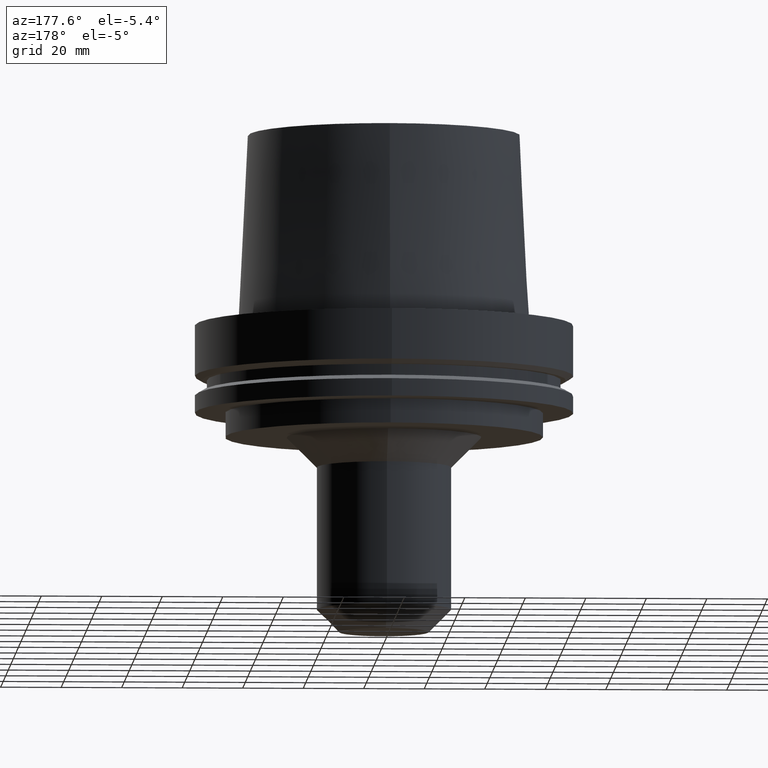
[diagram: clean part render]
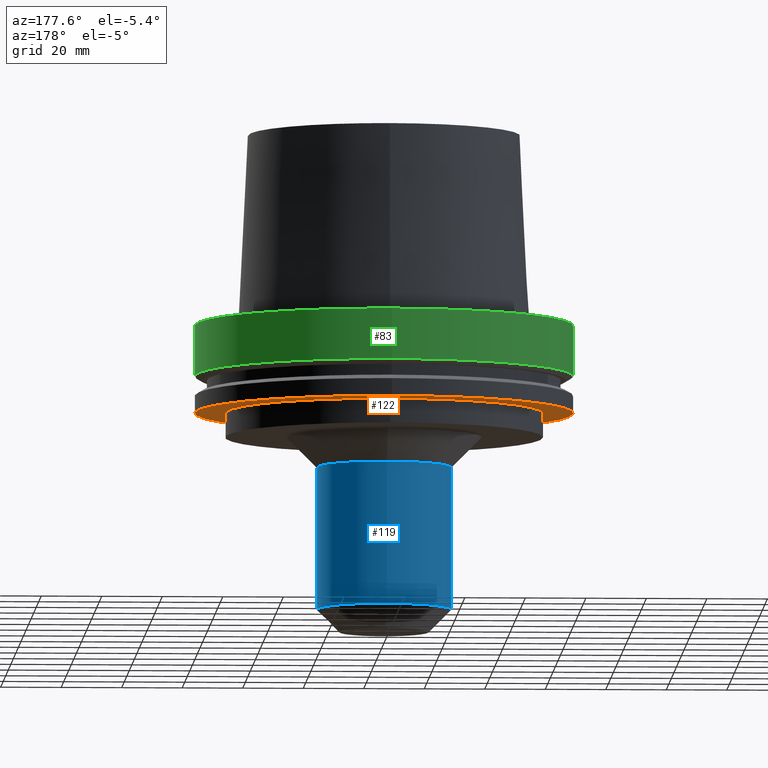
[diagram: same view with three faces highlighted in distinct colors, each labeled with its STEP entity id]
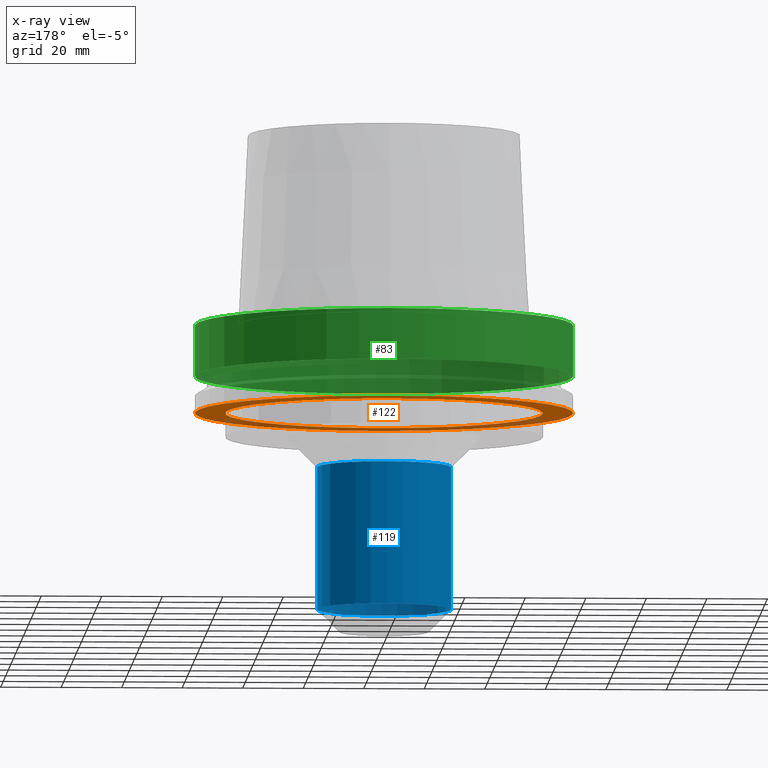
[diagram: x-ray of the same camera — body ghosted, the three highlighted faces saturated]
A machine part, auxiliary view with three faces highlighted in distinct colors.
The next image is the same camera in x-ray (body ghosted, the three faces saturated) — at least one of them is partly hidden behind the body in this view.
Their STEP definitions:

[orange] entity #122 — the highlighted planar face has unit normal (0, 0, -1).
#66=EDGE_CURVE('Unnamed[1]',#172,#172,#173,.T.);
#97=EDGE_CURVE('Unnamed[1]',#219,#219,#220,.T.);
#122=ADVANCED_FACE('Unnamed[1]',(#258,#259),#260,.T.);
#172=VERTEX_POINT('',#316);
#173=CIRCLE('',#317,52.5000000000003);
#219=VERTEX_POINT('',#374);
#220=CIRCLE('',#375,62.5);
#258=FACE_BOUND('',#423,.T.);
#259=FACE_OUTER_BOUND('',#424,.T.);
#260=PLANE('',#425);
#316=CARTESIAN_POINT('',(1.77573785876367E-015,52.5000000000003,-29.0000000000001));
#317=AXIS2_PLACEMENT_3D('',#481,#482,#483);
#374=CARTESIAN_POINT('',(1.77573785876367E-015,62.5,-29.0000000000001));
#375=AXIS2_PLACEMENT_3D('',#532,#533,#534);
#423=EDGE_LOOP('',(#575));
#424=EDGE_LOOP('',(#576));
#425=AXIS2_PLACEMENT_3D('',#577,#578,#579);
#481=CARTESIAN_POINT('',(1.77573785876367E-015,3.55147571752733E-015,-29.0000000000001));
#482=DIRECTION('',(6.12323399573677E-017,1.22464679914708E-016,-1.0));
#483=DIRECTION('',(-1.23259516440782E-032,1.0,1.22464679914708E-016));
#532=CARTESIAN_POINT('',(1.77573785876367E-015,3.55147571752733E-015,-29.0000000000001));
#533=DIRECTION('',(6.12323399573677E-017,1.22464679914723E-016,-1.0));
#534=DIRECTION('',(-1.23259516440783E-032,1.0,1.22464679914723E-016));
#575=ORIENTED_EDGE('',*,*,#66,.F.);
#576=ORIENTED_EDGE('',*,*,#97,.T.);
#577=CARTESIAN_POINT('',(1.77573785876367E-015,57.5000000000001,-29.0000000000001));
#578=DIRECTION('',(6.12323399573677E-017,1.22464679914735E-016,-1.0));
#579=DIRECTION('',(-1.23259516440783E-032,1.0,1.22464679914735E-016));

[blue] entity #119 — the highlighted cylindrical surface (bore or boss wall) has radius 22.225 mm, axis along (0, 0, -1).
#64=EDGE_CURVE('Unnamed[1]',#169,#169,#170,.T.);
#119=ADVANCED_FACE('Unnamed[1]',(#253,#254),#255,.T.);
#130=EDGE_CURVE('Unnamed[1]',#272,#272,#273,.T.);
#169=VERTEX_POINT('',#312);
#170=CIRCLE('',#313,22.225);
#253=FACE_BOUND('',#417,.T.);
#254=FACE_BOUND('',#418,.T.);
#255=CYLINDRICAL_SURFACE('',#419,22.225);
#272=VERTEX_POINT('',#440);
#273=CIRCLE('',#441,22.225);
#312=CARTESIAN_POINT('',(2.87791997799628E-015,22.225,-47.0));
#313=AXIS2_PLACEMENT_3D('',#478,#479,#480);
#417=EDGE_LOOP('',(#569));
#418=EDGE_LOOP('',(#570));
#419=AXIS2_PLACEMENT_3D('',#571,#572,#573);
#440=CARTESIAN_POINT('',(5.7634939984872E-015,22.225,-94.1249999999995));
#441=AXIS2_PLACEMENT_3D('',#592,#593,#594);
#478=CARTESIAN_POINT('',(2.87791997799628E-015,5.75583995599256E-015,-47.0));
#479=DIRECTION('',(6.12323399573676E-017,1.22464679914758E-016,-1.0));
#480=DIRECTION('',(-1.23259516440815E-032,1.0,1.22464679914758E-016));
#569=ORIENTED_EDGE('',*,*,#130,.F.);
#570=ORIENTED_EDGE('',*,*,#64,.T.);
#571=CARTESIAN_POINT('',(4.32070698824174E-015,8.64141397648348E-015,-70.5624999999997));
#572=DIRECTION('',(6.12323399573676E-017,1.22464679914758E-016,-1.0));
#573=DIRECTION('',(-1.23259516440815E-032,1.0,1.22464679914758E-016));
#592=CARTESIAN_POINT('',(5.7634939984872E-015,1.15269879969744E-014,-94.1249999999995));
#593=DIRECTION('',(6.12323399573676E-017,1.22464679914758E-016,-1.0));
#594=DIRECTION('',(-1.23259516440815E-032,1.0,1.22464679914758E-016));

[green] entity #83 — the highlighted cylindrical surface (bore or boss wall) has radius 62.5 mm, axis along (0, 0, -1).
#83=ADVANCED_FACE('Unnamed[1]',(#196,#197),#198,.T.);
#85=EDGE_CURVE('Unnamed[1]',#200,#200,#201,.T.);
#139=EDGE_CURVE('Unnamed[1]',#286,#286,#287,.T.);
#196=FACE_BOUND('',#345,.T.);
#197=FACE_BOUND('',#346,.T.);
#198=CYLINDRICAL_SURFACE('',#347,62.5000000000001);
#200=VERTEX_POINT('',#350);
#201=CIRCLE('',#351,62.5000000000002);
#286=VERTEX_POINT('',#458);
#287=CIRCLE('',#459,62.5);
#345=EDGE_LOOP('',(#506));
#346=EDGE_LOOP('',(#507));
#347=AXIS2_PLACEMENT_3D('',#508,#509,#510);
#350=CARTESIAN_POINT('',(-5.58935713239973E-030,62.5000000000002,8.63540424946709E-014));
#351=AXIS2_PLACEMENT_3D('',#511,#512,#513);
#458=CARTESIAN_POINT('',(1.02578894188644E-015,62.5,-16.7524047358084));
#459=AXIS2_PLACEMENT_3D('',#607,#608,#609);
#506=ORIENTED_EDGE('',*,*,#139,.F.);
#507=ORIENTED_EDGE('',*,*,#85,.T.);
#508=CARTESIAN_POINT('',(5.12894470943215E-016,1.02578894188643E-015,-8.37620236790416));
#509=DIRECTION('',(6.12323399573677E-017,1.22464679914723E-016,-1.0));
#510=DIRECTION('',(-1.23259516440783E-032,1.0,1.22464679914723E-016));
#511=CARTESIAN_POINT('',(-5.22098332203606E-030,-1.04419666440721E-029,8.5265128291212E-014));
#512=DIRECTION('',(6.12323399573677E-017,1.22464679914723E-016,-1.0));
#513=DIRECTION('',(-1.23259516440783E-032,1.0,1.22464679914723E-016));
#607=CARTESIAN_POINT('',(1.02578894188644E-015,2.05157788377287E-015,-16.7524047358084));
#608=DIRECTION('',(6.12323399573676E-017,1.22464679914723E-016,-1.0));
#609=DIRECTION('',(-1.23259516440783E-032,1.0,1.22464679914723E-016));